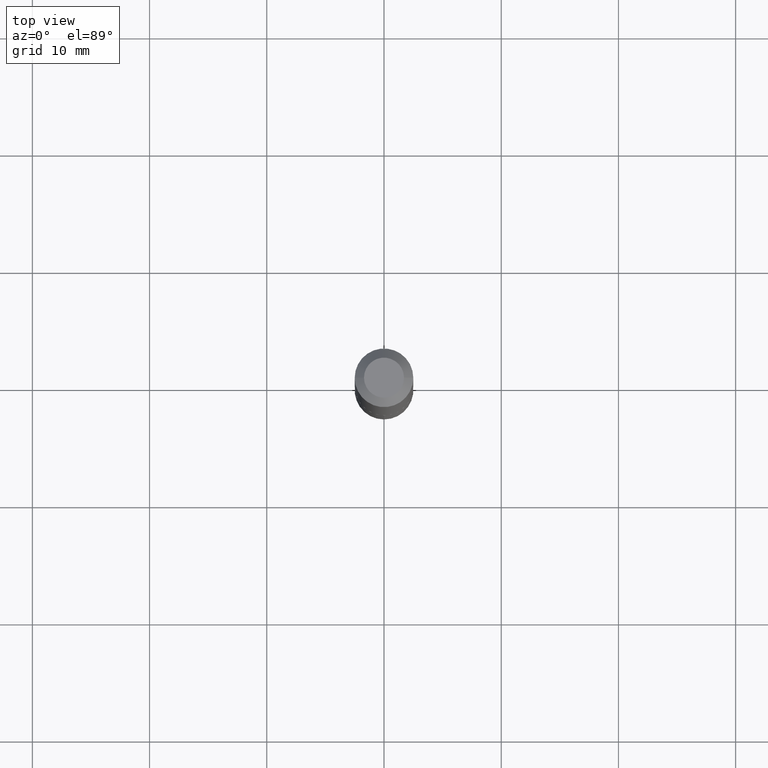
[diagram: clean part render]
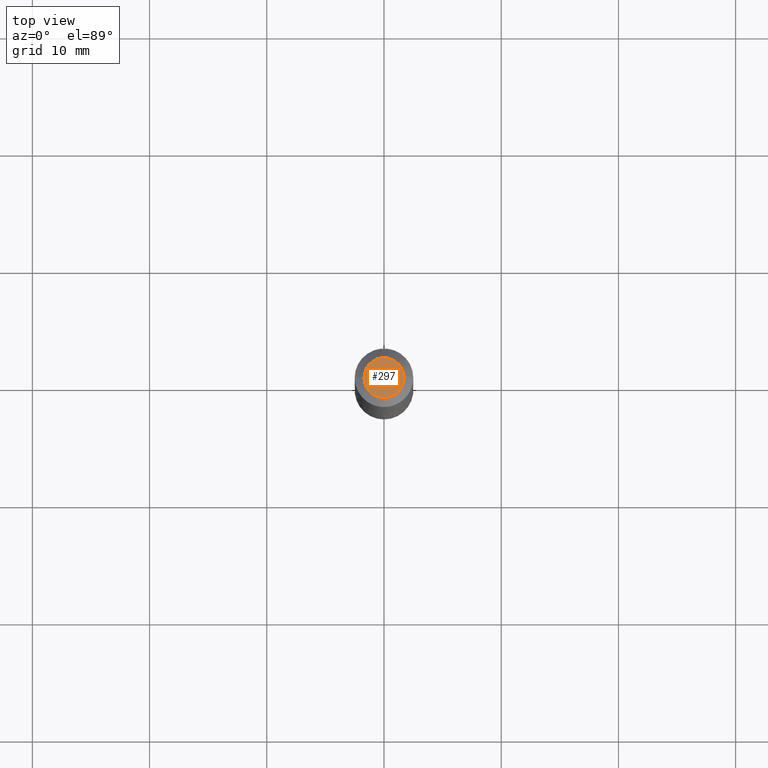
[diagram: same view with one face highlighted and labeled with its STEP entity id]
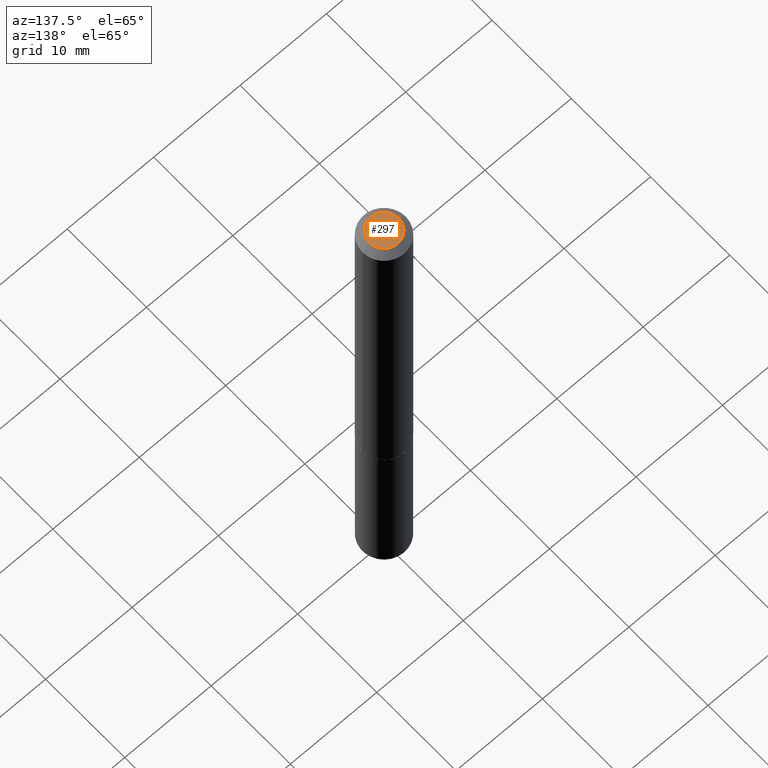
[diagram: same view with one face highlighted and labeled with its STEP entity id]
A machine part, top view. The second image highlights one B-rep face of the part: STEP entity #297.
A second angle (auxiliary view) of the same face is appended — the face is thin or edge-on in the first view.
In plain terms, the highlighted planar face has unit normal (0, -0, -1).
Its self-contained STEP definition (entity closure, byte-faithful):
#8 = EDGE_LOOP ( 'NONE', ( #17, #80 ) ) ;
#17 = ORIENTED_EDGE ( 'NONE', *, *, #74, .T. ) ;
#37 = CARTESIAN_POINT ( 'NONE',  ( -0.06719999999999999585, 5.238094878599405854E-16, 1.206277097156670637E-18 ) ) ;
#58 = DIRECTION ( 'NONE',  ( 2.438088387897960049E-29, -3.491481338843145188E-15, -1.000000000000000000 ) ) ;
#74 = EDGE_CURVE ( 'NONE', #371, #85, #100, .T. ) ;
#80 = ORIENTED_EDGE ( 'NONE', *, *, #141, .T. ) ;
#85 = VERTEX_POINT ( 'NONE', #248 ) ;
#91 = CARTESIAN_POINT ( 'NONE',  ( -2.949913012720686933E-47, 4.211693974208519599E-33, 1.206277097160142896E-18 ) ) ;
#100 = CIRCLE ( 'NONE', #250, 0.06719999999999999585 ) ;
#127 = CARTESIAN_POINT ( 'NONE',  ( -2.949913012720686933E-47, 4.211693974208519599E-33, 1.206277097160142896E-18 ) ) ;
#141 = EDGE_CURVE ( 'NONE', #85, #371, #354, .T. ) ;
#160 = DIRECTION ( 'NONE',  ( -2.445468806185136597E-29, 3.491481338843145583E-15, 1.000000000000000000 ) ) ;
#180 = DIRECTION ( 'NONE',  ( 1.000000000000000000, -6.982962677686266711E-15, 4.876163892769828153E-29 ) ) ;
#207 = DIRECTION ( 'NONE',  ( -1.000000000000000000, 6.982962677686265922E-15, -4.876176775795935793E-29 ) ) ;
#230 = AXIS2_PLACEMENT_3D ( 'NONE', #91, #160, #180 ) ;
#243 = DIRECTION ( 'NONE',  ( -2.445468806185136597E-29, 3.491481338843145583E-15, 1.000000000000000000 ) ) ;
#248 = CARTESIAN_POINT ( 'NONE',  ( 0.06719999999999999585, -6.227751425848516752E-16, 1.206277097163960667E-18 ) ) ;
#249 = AXIS2_PLACEMENT_3D ( 'NONE', #333, #58, #207 ) ;
#250 = AXIS2_PLACEMENT_3D ( 'NONE', #127, #243, #367 ) ;
#297 = ADVANCED_FACE ( 'NONE', ( #331 ), #368, .F. ) ;
#331 = FACE_OUTER_BOUND ( 'NONE', #8, .T. ) ;
#333 = CARTESIAN_POINT ( 'NONE',  ( -1.474956506360343467E-47, 2.105846987104259800E-33, 6.031385485800714479E-19 ) ) ;
#354 = CIRCLE ( 'NONE', #230, 0.06719999999999999585 ) ;
#367 = DIRECTION ( 'NONE',  ( 1.000000000000000000, -6.982962677686266711E-15, 4.876163892769828153E-29 ) ) ;
#368 = PLANE ( 'NONE',  #249 ) ;
#371 = VERTEX_POINT ( 'NONE', #37 ) ;